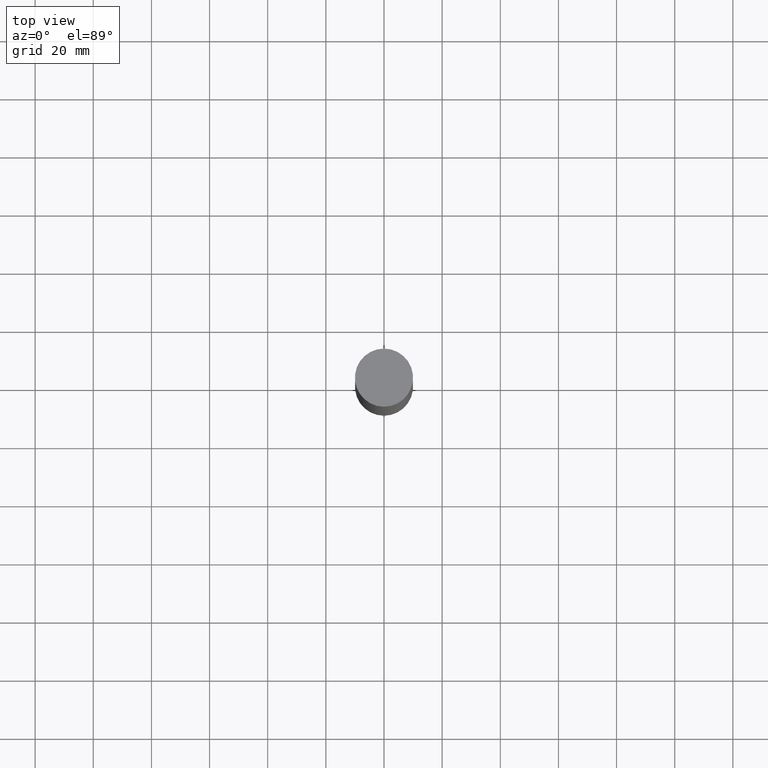
[diagram: clean part render]
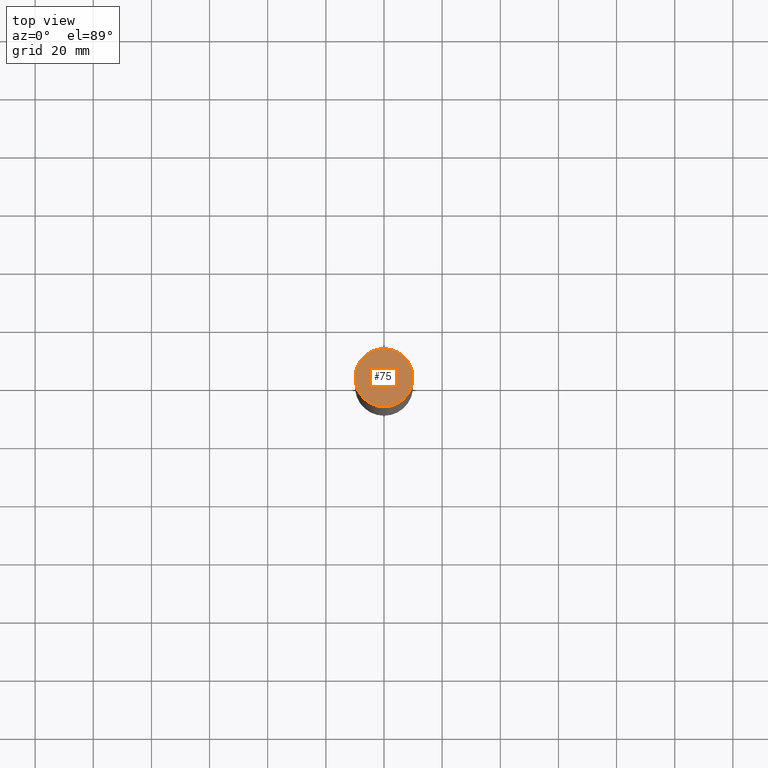
[diagram: same view with one face highlighted and labeled with its STEP entity id]
A machine part, top view. The second image highlights one B-rep face of the part: STEP entity #75.
In plain terms, the highlighted planar face has unit normal (-0, -0, 1).
Its self-contained STEP definition (entity closure, byte-faithful):
#75=ADVANCED_FACE('',(#84),#85,.T.);
#84=FACE_OUTER_BOUND('',#106,.T.);
#85=PLANE('',#107);
#106=EDGE_LOOP('',(#128));
#107=AXIS2_PLACEMENT_3D('',#129,#130,#131);
#128=ORIENTED_EDGE('',*,*,#166,.F.);
#129=CARTESIAN_POINT('',(-1.53080849893419E-014,4.99999999999997,250.0));
#130=DIRECTION('',(-6.12323399573677E-017,-1.22464679914735E-016,1.0));
#131=DIRECTION('',(1.23259516440783E-032,-1.0,-1.22464679914735E-016));
#166=EDGE_CURVE('',#173,#173,#174,.T.);
#173=VERTEX_POINT('',#187);
#174=CIRCLE('',#188,10.0);
#187=CARTESIAN_POINT('',(-1.53080849893419E-014,9.99999999999997,250.0));
#188=AXIS2_PLACEMENT_3D('',#201,#202,#203);
#201=CARTESIAN_POINT('',(-1.53080849893419E-014,-3.06161699786838E-014,250.0));
#202=DIRECTION('',(6.12323399573677E-017,1.22464679914735E-016,-1.0));
#203=DIRECTION('',(-1.23259516440783E-032,1.0,1.22464679914735E-016));